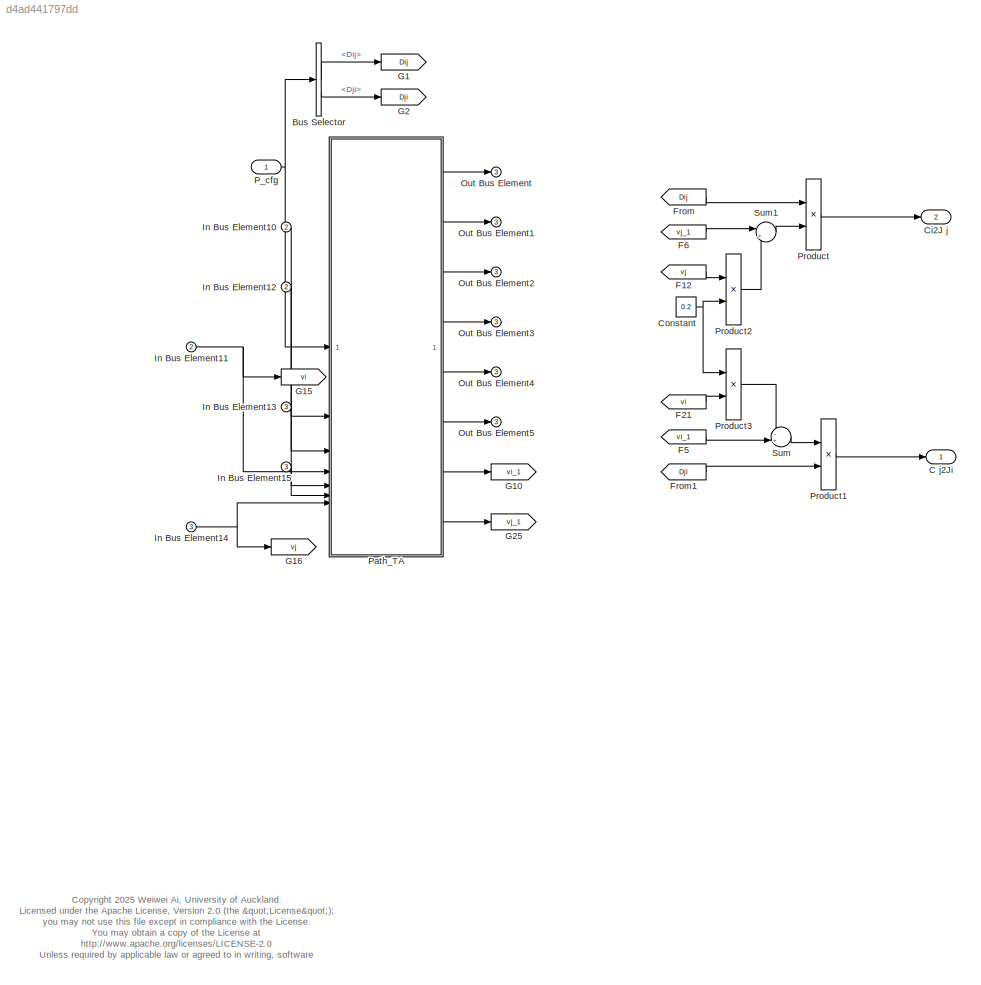
MODEL slx_d4ad441797dd
KIND model
CONFIG AbsTol = auto
CONFIG EnableMultiTasking = off
CONFIG FixedStep = 0.0005
CONFIG MaxStep = auto
CONFIG MinStep = auto
CONFIG RelTol = 1e-3
CONFIG SampleTimeConstraint = Unconstrained
CONFIG SolverName = ode1
CONFIG StartTime = 0.0
CONFIG StopTime = 10.0
WORKSPACE source: mxarray member
WORKSPACE l: Simulink.Parameter (value not decoded)
BLOCK [BusSelector] Bus Selector
  OutputSignals = Dij,Dji
BLOCK [Outport] C j2Ji
  OutDataTypeStr = double
  PortDimensions = 1
  SampleTime = [0.00050000000000000001,0]
  SamplingMode = Sample based
  SignalType = real
BLOCK [Outport] Ci2J j
  OutDataTypeStr = double
  Port = 2
  PortDimensions = 1
  SampleTime = [0.00050000000000000001,0]
  SamplingMode = Sample based
  SignalType = real
BLOCK [Constant] Constant
  Value = 0.2
BLOCK [From] F12
  GotoTag = vj
BLOCK [From] F21
  GotoTag = vi
BLOCK [From] F5
  GotoTag = vi_1
BLOCK [From] F6
  GotoTag = vj_1
BLOCK [From] From
  GotoTag = Dij
BLOCK [From] From1
  GotoTag = Dji
BLOCK [Goto] G1
  GotoTag = Dij
BLOCK [Goto] G10
  GotoTag = vi_1
BLOCK [Goto] G15
  GotoTag = vi
BLOCK [Goto] G16
  GotoTag = vj
BLOCK [Goto] G2
  GotoTag = Dji
BLOCK [Goto] G25
  GotoTag = vj_1
BLOCK [Inport] In Bus Element10
  Port = 2
BLOCK [Inport] In Bus Element11
  Port = 2
BLOCK [Inport] In Bus Element12
  Port = 2
BLOCK [Inport] In Bus Element13
  Port = 3
BLOCK [Inport] In Bus Element14
  Port = 3
BLOCK [Inport] In Bus Element15
  Port = 3
BLOCK [Outport] Out Bus Element
  Port = 3
BLOCK [Outport] Out Bus Element1
  Port = 3
BLOCK [Outport] Out Bus Element2
  Port = 3
BLOCK [Outport] Out Bus Element3
  Port = 3
BLOCK [Outport] Out Bus Element4
  Port = 3
BLOCK [Outport] Out Bus Element5
  Port = 3
BLOCK [Inport] P_cfg
  BusOutputAsStruct = on
  OutDataTypeStr = Bus: Config_Path
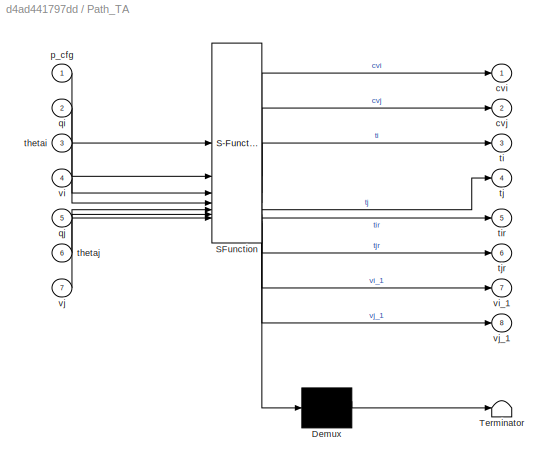
BLOCK [SubSystem] Path_TA
  ErrorFcn = Stateflow.Translate.translate
  PermitHierarchicalResolution = ExplicitOnly
  SFBlockType = Chart
  TreatAsAtomicUnit = on
BLOCK [Demux] Path_TA/ Demux 
  Outputs = 1
BLOCK [S-Function] Path_TA/ SFunction 
  EnableBusSupport = on
  FunctionName = sf_sfun
  Parameters = l
  PortCounts = [7 9]
  SFcnIsStateOwnerBlock = off
  SFunctionDeploymentMode = off
  Tag = Stateflow S-Function 71
BLOCK [Terminator] Path_TA/ Terminator 
BLOCK [Outport] Path_TA/cvi
BLOCK [Outport] Path_TA/cvj
  Port = 2
BLOCK [Inport] Path_TA/p_cfg
BLOCK [Inport] Path_TA/qi
  Port = 2
BLOCK [Inport] Path_TA/qj
  Port = 5
BLOCK [Inport] Path_TA/thetai
  Port = 3
BLOCK [Inport] Path_TA/thetaj
  Port = 6
BLOCK [Outport] Path_TA/ti
  Port = 3
BLOCK [Outport] Path_TA/tir
  Port = 5
BLOCK [Outport] Path_TA/tj
  Port = 4
BLOCK [Outport] Path_TA/tjr
  Port = 6
BLOCK [Inport] Path_TA/vi
  Port = 4
BLOCK [Outport] Path_TA/vi_1
  Port = 7
BLOCK [Inport] Path_TA/vj
  Port = 7
BLOCK [Outport] Path_TA/vj_1
  Port = 8
BLOCK [Product] Product
  Inputs = **
BLOCK [Product] Product1
  Inputs = **
BLOCK [Product] Product2
  Inputs = **
BLOCK [Product] Product3
  Inputs = **
BLOCK [Sum] Sum
  Inputs = -+|
BLOCK [Sum] Sum1
  Inputs = |+-
ANNOTATION (root): <copyright redacted>
LINE Bus Selector:1 -> G1:1
LINE Bus Selector:2 -> G2:1
NET Constant:1 -> Product2:2, Product3:1
LINE F12:1 -> Product2:1
LINE F21:1 -> Product3:2
LINE F5:1 -> Sum:2
LINE F6:1 -> Sum1:1
LINE From1:1 -> Product1:2
LINE From:1 -> Product:1
LINE In Bus Element10:1 -> Path_TA:2
NET In Bus Element11:1 -> G15:1, Path_TA:4
LINE In Bus Element12:1 -> Path_TA:3
LINE In Bus Element13:1 -> Path_TA:5
NET In Bus Element14:1 -> G16:1, Path_TA:7
LINE In Bus Element15:1 -> Path_TA:6
NET P_cfg:1 -> Bus Selector:1, Path_TA:1
LINE Path_TA:1 -> Out Bus Element:1
LINE Path_TA:2 -> Out Bus Element1:1
LINE Path_TA:3 -> Out Bus Element2:1
LINE Path_TA:4 -> Out Bus Element3:1
LINE Path_TA:5 -> Out Bus Element4:1
LINE Path_TA:6 -> Out Bus Element5:1
LINE Path_TA:7 -> G10:1
LINE Path_TA:8 -> G25:1
LINE Product1:1 -> C j2Ji:1
LINE Product2:1 -> Sum1:2
LINE Product3:1 -> Sum:1
LINE Product:1 -> Ci2J j:1
LINE Sum1:1 -> Product:2
LINE Sum:1 -> Product1:1
note: NET lines group one-source signal fan-out (src -> all destinations, sorted); 1:1 wires keep LINE
CHART Path_TA states=54 transitions=56
  STATE_LABEL 'Wave'
  STATE_LABEL 'Relay_i'
  STATE_LABEL 'Relay\nen: tj_1=0;\ndu: tj_1=temporalCount(sec);\n vj_1=vbi(floor(tj_1)+1);\nex: tj_1=0;\n'
  STATE_LABEL 'Idle\nen:\nvj_1=0;\n'
  STATE_LABEL 'Reach_j'
  STATE_LABEL '[qj>=2 || j_1==0 ]'
  STATE_LABEL 'Cell_i'
  STATE_LABEL 'Activation\n'
  STATE_LABEL 'Rest\nen:\ni_1=0;\n'
  STATE_LABEL 'Reach_i'
  STATE_LABEL '[after(tbj,sec)]'
  STATE_LABEL 'Go_j'
  STATE_LABEL 'Relay_j'
  STATE_LABEL 'Relay\nen: ti_1=0;\ndu: ti_1=temporalCount(sec);\n vi_1=vbj(floor(ti_1)+1);\nex: ti_1=0;\n'
  STATE_LABEL 'Idle\nen:\nvi_1=0;\n'
  STATE_LABEL 'Reach_i'
  STATE_LABEL '[qi>=2 || i_1==0 ]'
  STATE_LABEL 'Cell_j'
  STATE_LABEL 'Activation\n'
  STATE_LABEL 'Rest\nen:\nj_1=0;\n'
  STATE_LABEL '1.'
  STATE_LABEL 'Reach_j'
  STATE_LABEL '[after(tbi,sec)]'
  STATE_LABEL 'Go_i'
  STATE_LABEL 'End_j'
  STATE_LABEL 'End_j_Idle'
  STATE_LABEL 'Go\nen: tj=0;\ndu: tj=temporalCount(sec);\nex: tj=0;\n'
  STATE_LABEL '5'
  STATE_LABEL 'Ready'
  STATE_LABEL '2.'
  STATE_LABEL 'BlockedByNeighbour'
  STATE_LABEL '[Meet || mul==0]'
  STATE_LABEL '[tj>=Tj && mul==1]\n/{mul=mul-1;i_1=1; send(Reach_i,Cell_i);send(Reach_i,Relay_j);}'
  STATE_LABEL '[qj==2 && j_1==0]'
  STATE_LABEL '[qj==3 && j_1==0]\n/{ cvj=thetafcn(p_cfg.CVj2i,thetaj,p_cfg.aji,p_cfg.bji,p_cfg.cji);\nTj=l/cvj; mul=mul+1; send(Go_j,Buffer_j);send(Go_j,Cell_i);}'
  STATE_LABEL '[qj==2 && j_1==1]'
  STATE_LABEL '[cvj==0 || (qj==3 && j_1==1)]{tj=0;}'
  STATE_LABEL '[qj==0]'
  STATE_LABEL 'End_i'
  STATE_LABEL 'End_i_Idle'
CHART  states=0 transitions=0
